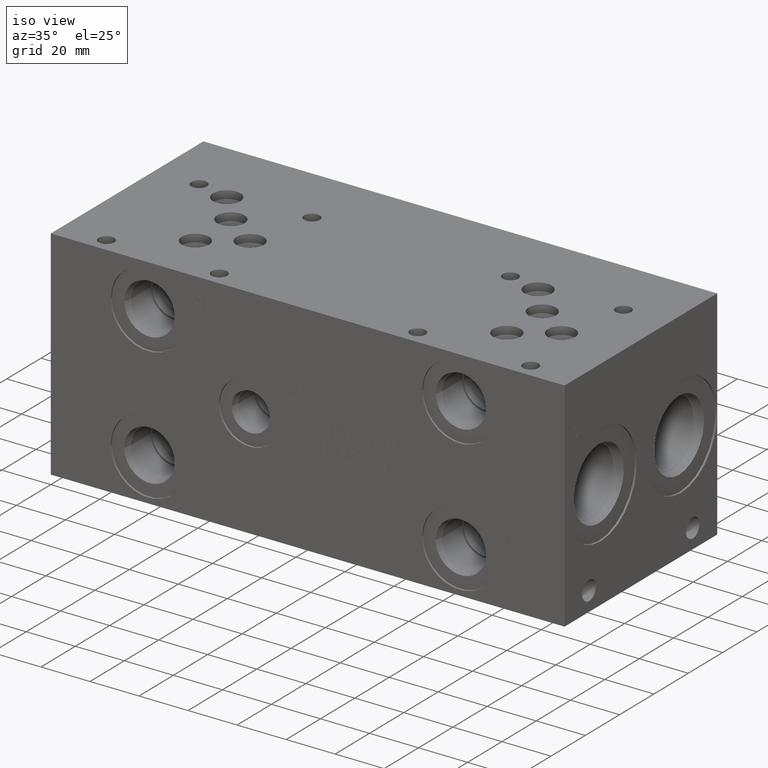
[diagram: clean part render]
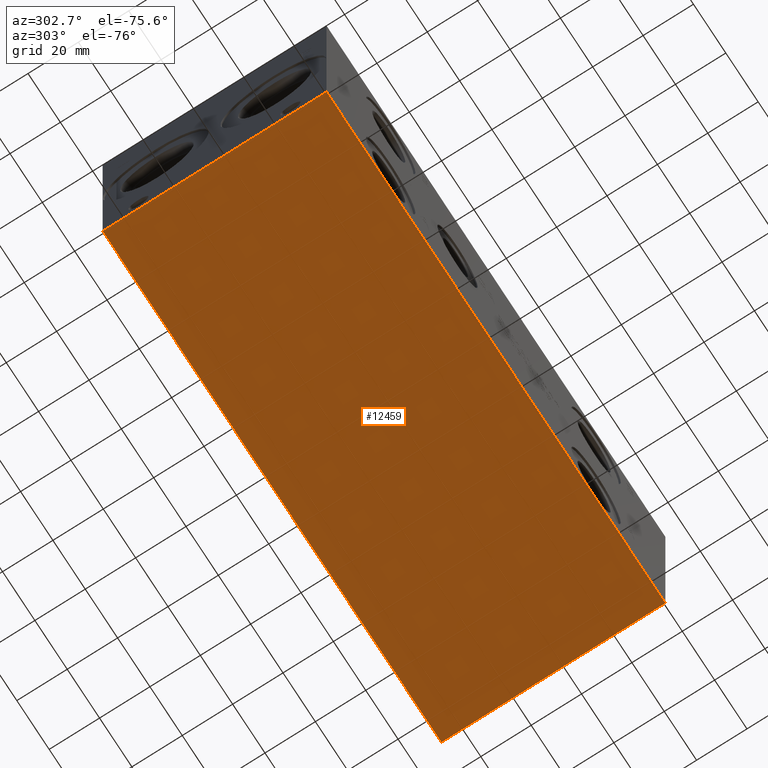
[diagram: tour spotlight — one face highlighted and labeled with its STEP entity id]
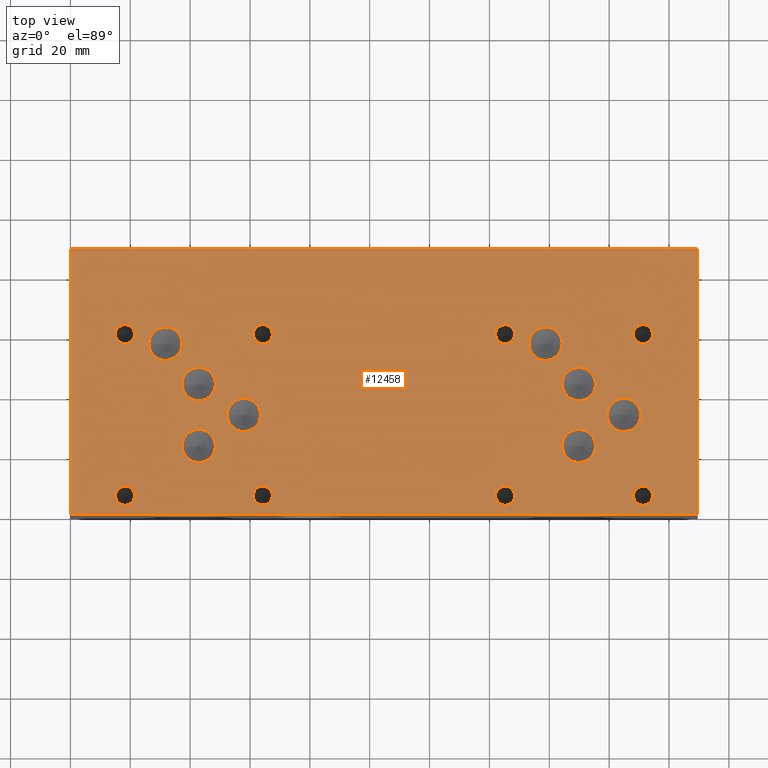
[diagram: tour spotlight — one face highlighted and labeled with its STEP entity id]
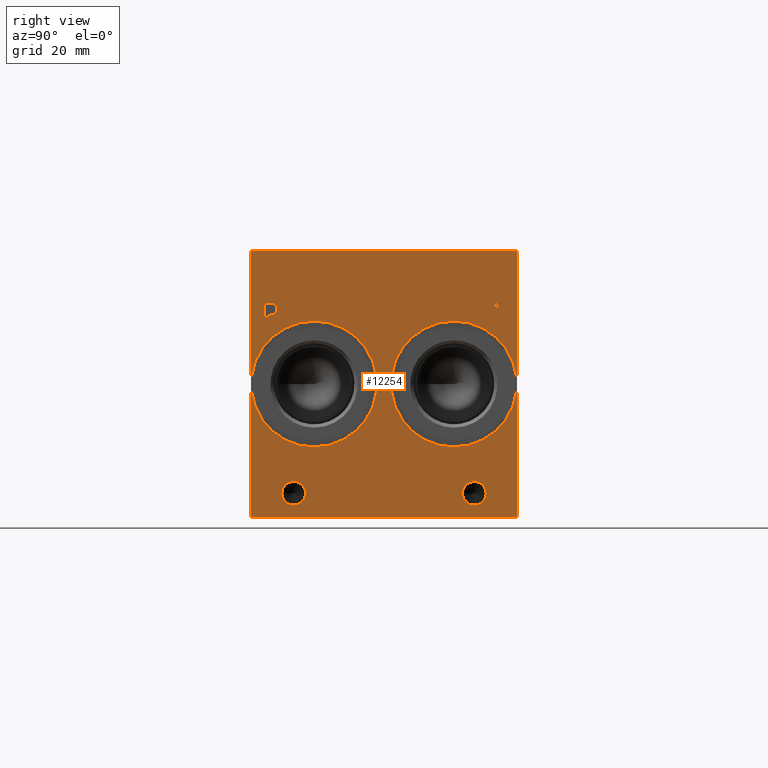
[diagram: tour spotlight — one face highlighted and labeled with its STEP entity id]
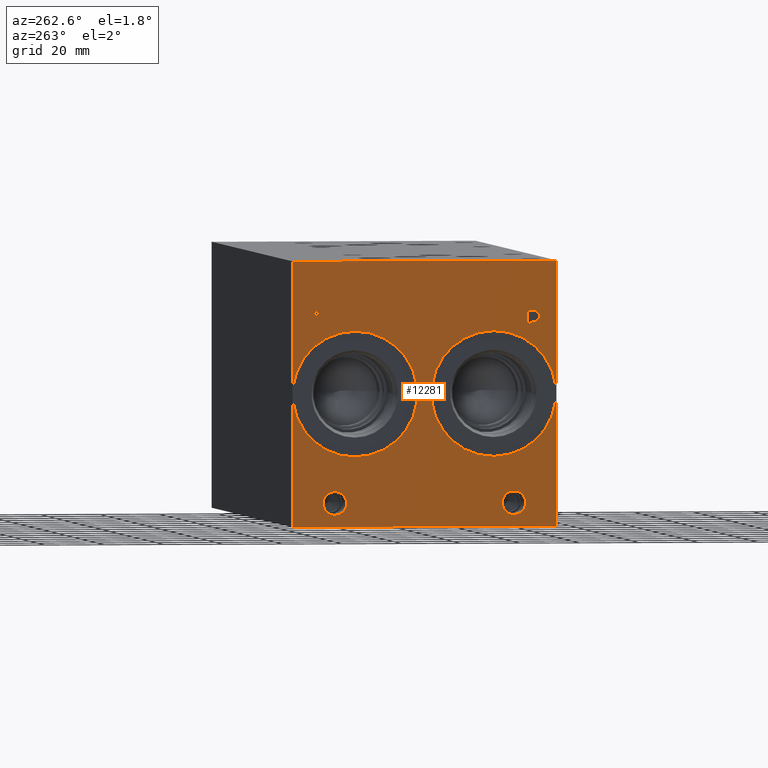
[diagram: tour spotlight — one face highlighted and labeled with its STEP entity id]
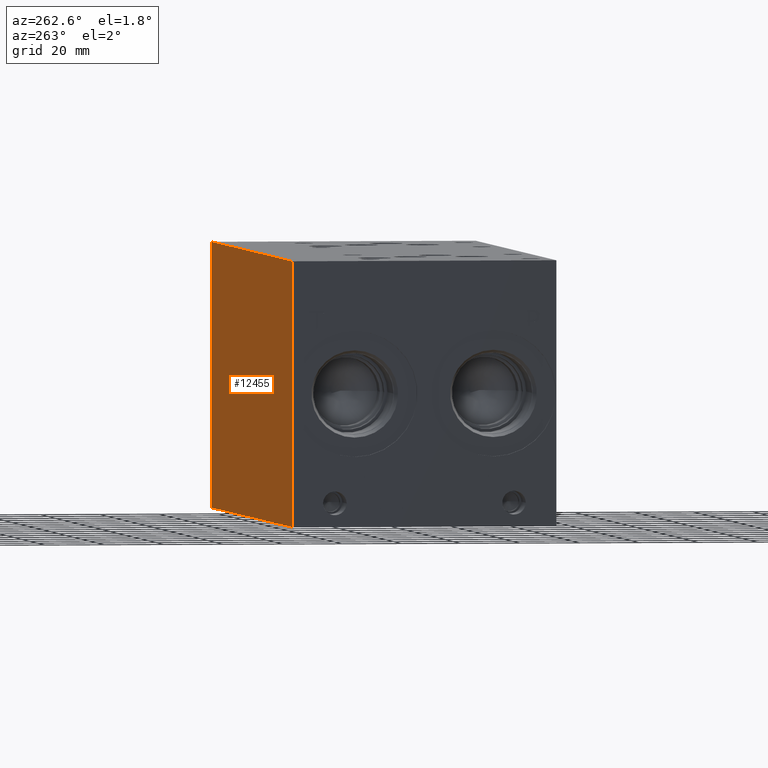
[diagram: tour spotlight — one face highlighted and labeled with its STEP entity id]
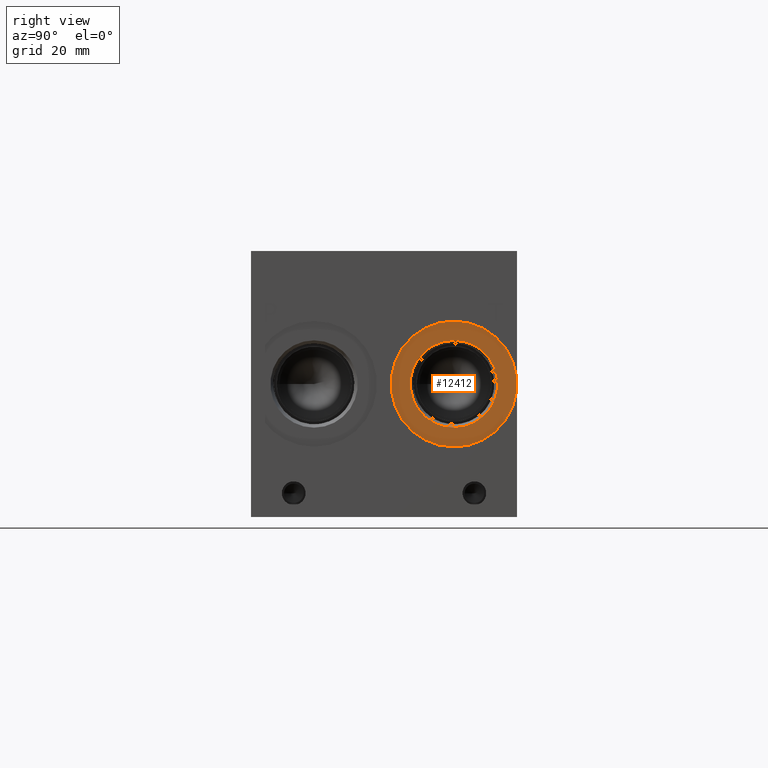
[diagram: tour spotlight — one face highlighted and labeled with its STEP entity id]
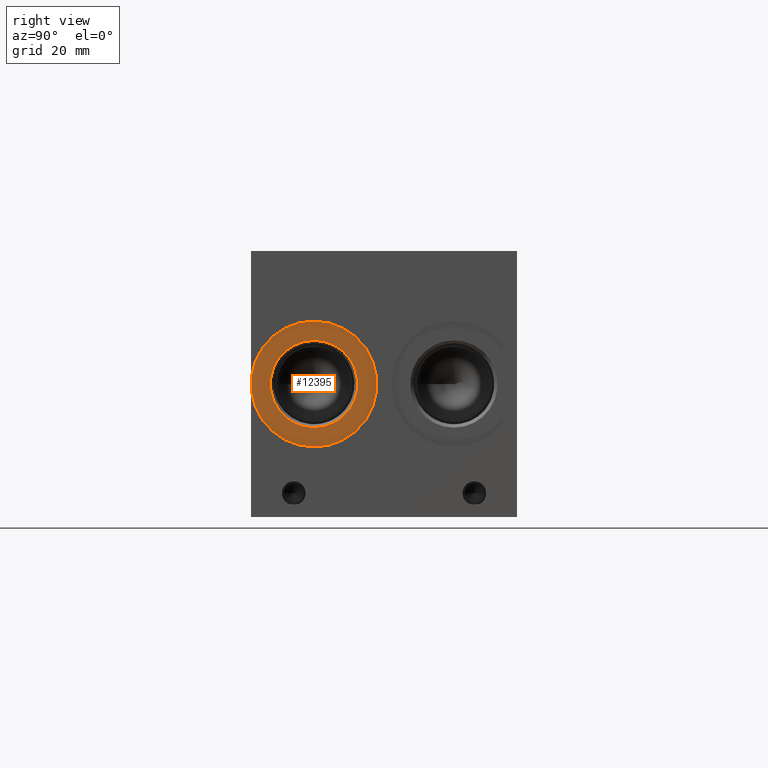
[diagram: tour spotlight — one face highlighted and labeled with its STEP entity id]
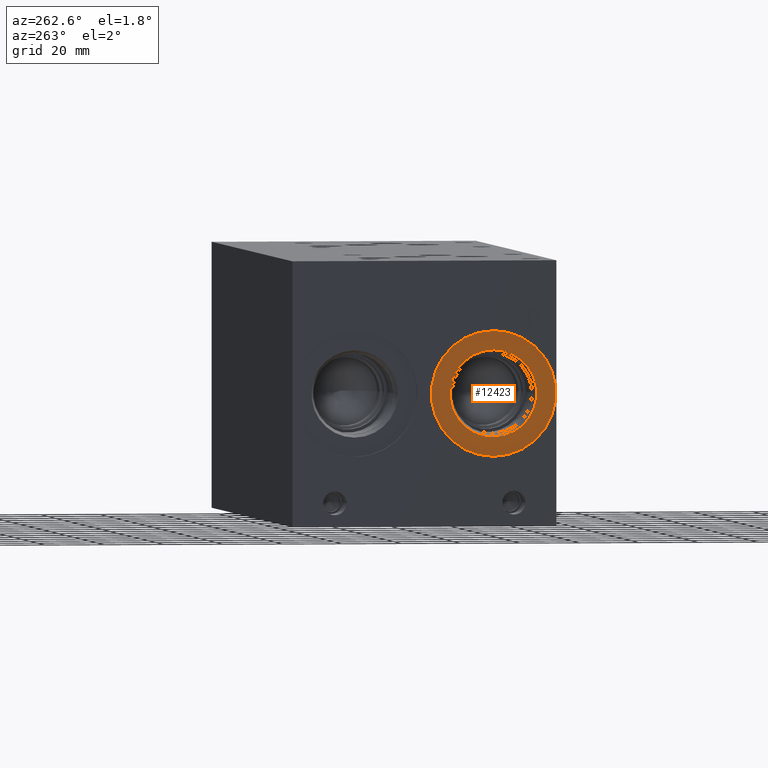
[diagram: tour spotlight — one face highlighted and labeled with its STEP entity id]
A machine part: a face-by-face anatomy tour. The part has 643 B-rep faces; the first image is the clean iso view, then the 8 largest visible faces are spotlighted one at a time (largest first), each with its STEP entity span.

Face 1 — auxiliary view, entity #12459. In plain terms, the highlighted planar face has unit normal (0, 0, 1).
Definition (entity closure, byte-faithful):
#891=PLANE('',#13248);
#1534=FACE_OUTER_BOUND('',#2280,.T.);
#2280=EDGE_LOOP('',(#11195,#11196,#11197,#11198));
#2542=LINE('',#18034,#3659);
#3177=LINE('',#20339,#4294);
#3236=LINE('',#20611,#4353);
#3396=LINE('',#21537,#4513);
#3659=VECTOR('',#13644,10.);
#4294=VECTOR('',#14741,10.);
#4353=VECTOR('',#14854,10.);
#4513=VECTOR('',#15908,10.);
#5131=VERTEX_POINT('',#18032);
#5132=VERTEX_POINT('',#18033);
#5643=VERTEX_POINT('',#20338);
#5701=VERTEX_POINT('',#20610);
#6468=EDGE_CURVE('',#5131,#5132,#2542,.T.);
#7229=EDGE_CURVE('',#5132,#5643,#3177,.T.);
#7312=EDGE_CURVE('',#5701,#5131,#3236,.T.);
#7745=EDGE_CURVE('',#5643,#5701,#3396,.T.);
#11195=ORIENTED_EDGE('',*,*,#6468,.F.);
#11196=ORIENTED_EDGE('',*,*,#7312,.F.);
#11197=ORIENTED_EDGE('',*,*,#7745,.F.);
#11198=ORIENTED_EDGE('',*,*,#7229,.F.);
#12459=ADVANCED_FACE('',(#1534),#891,.F.);
#13248=AXIS2_PLACEMENT_3D('',#21542,#15916,#15917);
#13644=DIRECTION('',(1.,0.,0.));
#14741=DIRECTION('',(0.,1.,0.));
#14854=DIRECTION('',(0.,-1.,0.));
#15908=DIRECTION('',(-1.,0.,0.));
#15916=DIRECTION('center_axis',(0.,0.,1.));
#15917=DIRECTION('ref_axis',(1.,0.,0.));
#18032=CARTESIAN_POINT('',(0.,0.,0.));
#18033=CARTESIAN_POINT('',(209.55,0.,0.));
#18034=CARTESIAN_POINT('',(0.,0.,0.));
#20338=CARTESIAN_POINT('',(209.55,88.9,0.));
#20339=CARTESIAN_POINT('',(209.55,0.,0.));
#20610=CARTESIAN_POINT('',(0.,88.9,0.));
#20611=CARTESIAN_POINT('',(0.,88.9,0.));
#21537=CARTESIAN_POINT('',(209.55,88.9,0.));
#21542=CARTESIAN_POINT('Origin',(104.775,44.45,0.));

Face 2 — top view, entity #12458. In plain terms, the highlighted planar face has unit normal (0, 0, 1).
Definition (entity closure, byte-faithful):
#175=CIRCLE('',#12819,5.5626);
#176=CIRCLE('',#12820,5.5626);
#179=CIRCLE('',#12825,5.5626);
#180=CIRCLE('',#12826,5.5626);
#183=CIRCLE('',#12831,5.5626);
#184=CIRCLE('',#12832,5.5626);
#187=CIRCLE('',#12837,5.5626);
#188=CIRCLE('',#12838,5.5626);
#191=CIRCLE('',#12843,5.5626);
#192=CIRCLE('',#12844,5.5626);
#195=CIRCLE('',#12849,5.5626);
#196=CIRCLE('',#12850,5.5626);
#199=CIRCLE('',#12855,5.5626);
#200=CIRCLE('',#12856,5.5626);
#203=CIRCLE('',#12861,5.5626);
#204=CIRCLE('',#12862,5.5626);
#210=CIRCLE('',#12871,3.175);
#211=CIRCLE('',#12872,3.175);
#217=CIRCLE('',#12882,3.175);
#218=CIRCLE('',#12883,3.175);
#224=CIRCLE('',#12893,3.175);
#225=CIRCLE('',#12894,3.175);
#231=CIRCLE('',#12904,3.175);
#232=CIRCLE('',#12905,3.175);
#238=CIRCLE('',#12915,3.175);
#239=CIRCLE('',#12916,3.175);
#245=CIRCLE('',#12926,3.175);
#246=CIRCLE('',#12927,3.175);
#252=CIRCLE('',#12937,3.175);
#253=CIRCLE('',#12938,3.175);
#259=CIRCLE('',#12948,3.175);
#260=CIRCLE('',#12949,3.175);
#525=FACE_BOUND('',#2264,.T.);
#526=FACE_BOUND('',#2265,.T.);
#527=FACE_BOUND('',#2266,.T.);
#528=FACE_BOUND('',#2267,.T.);
#529=FACE_BOUND('',#2268,.T.);
#530=FACE_BOUND('',#2269,.T.);
#531=FACE_BOUND('',#2270,.T.);
#532=FACE_BOUND('',#2271,.T.);
#533=FACE_BOUND('',#2272,.T.);
#534=FACE_BOUND('',#2273,.T.);
#535=FACE_BOUND('',#2274,.T.);
#536=FACE_BOUND('',#2275,.T.);
#537=FACE_BOUND('',#2276,.T.);
#538=FACE_BOUND('',#2277,.T.);
#539=FACE_BOUND('',#2278,.T.);
#540=FACE_BOUND('',#2279,.T.);
#890=PLANE('',#13247);
#1533=FACE_OUTER_BOUND('',#2263,.T.);
#2263=EDGE_LOOP('',(#11159,#11160,#11161,#11162));
#2264=EDGE_LOOP('',(#11163,#11164));
#2265=EDGE_LOOP('',(#11165,#11166));
#2266=EDGE_LOOP('',(#11167,#11168));
#2267=EDGE_LOOP('',(#11169,#11170));
#2268=EDGE_LOOP('',(#11171,#11172));
#2269=EDGE_LOOP('',(#11173,#11174));
#2270=EDGE_LOOP('',(#11175,#11176));
#2271=EDGE_LOOP('',(#11177,#11178));
#2272=EDGE_LOOP('',(#11179,#11180));
#2273=EDGE_LOOP('',(#11181,#11182));
#2274=EDGE_LOOP('',(#11183,#11184));
#2275=EDGE_LOOP('',(#11185,#11186));
#2276=EDGE_LOOP('',(#11187,#11188));
#2277=EDGE_LOOP('',(#11189,#11190));
#2278=EDGE_LOOP('',(#11191,#11192));
#2279=EDGE_LOOP('',(#11193,#11194));
#2544=LINE('',#18038,#3661);
#3179=LINE('',#20342,#4296);
#3237=LINE('',#20613,#4354);
#3397=LINE('',#21538,#4514);
#3661=VECTOR('',#13646,10.);
#4296=VECTOR('',#14743,10.);
#4354=VECTOR('',#14855,10.);
#4514=VECTOR('',#15909,10.);
#5133=VERTEX_POINT('',#18035);
#5134=VERTEX_POINT('',#18037);
#5644=VERTEX_POINT('',#20340);
#5702=VERTEX_POINT('',#20612);
#5730=VERTEX_POINT('',#20688);
#5731=VERTEX_POINT('',#20689);
#5735=VERTEX_POINT('',#20701);
#5736=VERTEX_POINT('',#20702);
#5740=VERTEX_POINT('',#20714);
#5741=VERTEX_POINT('',#20715);
#5745=VERTEX_POINT('',#20727);
#5746=VERTEX_POINT('',#20728);
#5750=VERTEX_POINT('',#20740);
#5751=VERTEX_POINT('',#20741);
#5755=VERTEX_POINT('',#20753);
#5756=VERTEX_POINT('',#20754);
#5760=VERTEX_POINT('',#20766);
#5761=VERTEX_POINT('',#20767);
#5765=VERTEX_POINT('',#20779);
#5766=VERTEX_POINT('',#20780);
#5773=VERTEX_POINT('',#20799);
#5774=VERTEX_POINT('',#20800);
#5781=VERTEX_POINT('',#20821);
#5782=VERTEX_POINT('',#20822);
#5789=VERTEX_POINT('',#20843);
#5790=VERTEX_POINT('',#20844);
#5797=VERTEX_POINT('',#20865);
#5798=VERTEX_POINT('',#20866);
#5805=VERTEX_POINT('',#20887);
#5806=VERTEX_POINT('',#20888);
#5813=VERTEX_POINT('',#20909);
#5814=VERTEX_POINT('',#20910);
#5821=VERTEX_POINT('',#20931);
#5822=VERTEX_POINT('',#20932);
#5829=VERTEX_POINT('',#20953);
#5830=VERTEX_POINT('',#20954);
#6470=EDGE_CURVE('',#5134,#5133,#2544,.T.);
#7231=EDGE_CURVE('',#5133,#5644,#3179,.T.);
#7313=EDGE_CURVE('',#5702,#5134,#3237,.T.);
#7350=EDGE_CURVE('',#5730,#5731,#175,.T.);
#7351=EDGE_CURVE('',#5731,#5730,#176,.T.);
#7356=EDGE_CURVE('',#5735,#5736,#179,.T.);
#7357=EDGE_CURVE('',#5736,#5735,#180,.T.);
#7362=EDGE_CURVE('',#5740,#5741,#183,.T.);
#7363=EDGE_CURVE('',#5741,#5740,#184,.T.);
#7368=EDGE_CURVE('',#5745,#5746,#187,.T.);
#7369=EDGE_CURVE('',#5746,#5745,#188,.T.);
#7374=EDGE_CURVE('',#5750,#5751,#191,.T.);
#7375=EDGE_CURVE('',#5751,#5750,#192,.T.);
#7380=EDGE_CURVE('',#5755,#5756,#195,.T.);
#7381=EDGE_CURVE('',#5756,#5755,#196,.T.);
#7386=EDGE_CURVE('',#5760,#5761,#199,.T.);
#7387=EDGE_CURVE('',#5761,#5760,#200,.T.);
#7392=EDGE_CURVE('',#5765,#5766,#203,.T.);
#7393=EDGE_CURVE('',#5766,#5765,#204,.T.);
#7401=EDGE_CURVE('',#5773,#5774,#210,.T.);
#7402=EDGE_CURVE('',#5774,#5773,#211,.T.);
#7411=EDGE_CURVE('',#5781,#5782,#217,.T.);
#7412=EDGE_CURVE('',#5782,#5781,#218,.T.);
#7421=EDGE_CURVE('',#5789,#5790,#224,.T.);
#7422=EDGE_CURVE('',#5790,#5789,#225,.T.);
#7431=EDGE_CURVE('',#5797,#5798,#231,.T.);
#7432=EDGE_CURVE('',#5798,#5797,#232,.T.);
#7441=EDGE_CURVE('',#5805,#5806,#238,.T.);
#7442=EDGE_CURVE('',#5806,#5805,#239,.T.);
#7451=EDGE_CURVE('',#5813,#5814,#245,.T.);
#7452=EDGE_CURVE('',#5814,#5813,#246,.T.);
#7461=EDGE_CURVE('',#5821,#5822,#252,.T.);
#7462=EDGE_CURVE('',#5822,#5821,#253,.T.);
#7471=EDGE_CURVE('',#5829,#5830,#259,.T.);
#7472=EDGE_CURVE('',#5830,#5829,#260,.T.);
#7746=EDGE_CURVE('',#5644,#5702,#3397,.T.);
#11159=ORIENTED_EDGE('',*,*,#6470,.T.);
#11160=ORIENTED_EDGE('',*,*,#7231,.T.);
#11161=ORIENTED_EDGE('',*,*,#7746,.T.);
#11162=ORIENTED_EDGE('',*,*,#7313,.T.);
#11163=ORIENTED_EDGE('',*,*,#7350,.T.);
#11164=ORIENTED_EDGE('',*,*,#7351,.T.);
#11165=ORIENTED_EDGE('',*,*,#7356,.T.);
#11166=ORIENTED_EDGE('',*,*,#7357,.T.);
#11167=ORIENTED_EDGE('',*,*,#7362,.T.);
#11168=ORIENTED_EDGE('',*,*,#7363,.T.);
#11169=ORIENTED_EDGE('',*,*,#7368,.T.);
#11170=ORIENTED_EDGE('',*,*,#7369,.T.);
#11171=ORIENTED_EDGE('',*,*,#7374,.T.);
#11172=ORIENTED_EDGE('',*,*,#7375,.T.);
#11173=ORIENTED_EDGE('',*,*,#7380,.T.);
#11174=ORIENTED_EDGE('',*,*,#7381,.T.);
#11175=ORIENTED_EDGE('',*,*,#7386,.T.);
#11176=ORIENTED_EDGE('',*,*,#7387,.T.);
#11177=ORIENTED_EDGE('',*,*,#7392,.T.);
#11178=ORIENTED_EDGE('',*,*,#7393,.T.);
#11179=ORIENTED_EDGE('',*,*,#7401,.T.);
#11180=ORIENTED_EDGE('',*,*,#7402,.T.);
#11181=ORIENTED_EDGE('',*,*,#7411,.T.);
#11182=ORIENTED_EDGE('',*,*,#7412,.T.);
#11183=ORIENTED_EDGE('',*,*,#7421,.T.);
#11184=ORIENTED_EDGE('',*,*,#7422,.T.);
#11185=ORIENTED_EDGE('',*,*,#7431,.T.);
#11186=ORIENTED_EDGE('',*,*,#7432,.T.);
#11187=ORIENTED_EDGE('',*,*,#7441,.T.);
#11188=ORIENTED_EDGE('',*,*,#7442,.T.);
#11189=ORIENTED_EDGE('',*,*,#7451,.T.);
#11190=ORIENTED_EDGE('',*,*,#7452,.T.);
#11191=ORIENTED_EDGE('',*,*,#7461,.T.);
#11192=ORIENTED_EDGE('',*,*,#7462,.T.);
#11193=ORIENTED_EDGE('',*,*,#7471,.T.);
#11194=ORIENTED_EDGE('',*,*,#7472,.T.);
#12458=ADVANCED_FACE('',(#1533,#525,#526,#527,#528,#529,#530,#531,#532,
#533,#534,#535,#536,#537,#538,#539,#540),#890,.T.);
#12819=AXIS2_PLACEMENT_3D('',#20690,#14924,#14925);
#12820=AXIS2_PLACEMENT_3D('',#20691,#14926,#14927);
#12825=AXIS2_PLACEMENT_3D('',#20703,#14938,#14939);
#12826=AXIS2_PLACEMENT_3D('',#20704,#14940,#14941);
#12831=AXIS2_PLACEMENT_3D('',#20716,#14952,#14953);
#12832=AXIS2_PLACEMENT_3D('',#20717,#14954,#14955);
#12837=AXIS2_PLACEMENT_3D('',#20729,#14966,#14967);
#12838=AXIS2_PLACEMENT_3D('',#20730,#14968,#14969);
#12843=AXIS2_PLACEMENT_3D('',#20742,#14980,#14981);
#12844=AXIS2_PLACEMENT_3D('',#20743,#14982,#14983);
#12849=AXIS2_PLACEMENT_3D('',#20755,#14994,#14995);
#12850=AXIS2_PLACEMENT_3D('',#20756,#14996,#14997);
#12855=AXIS2_PLACEMENT_3D('',#20768,#15008,#15009);
#12856=AXIS2_PLACEMENT_3D('',#20769,#15010,#15011);
#12861=AXIS2_PLACEMENT_3D('',#20781,#15022,#15023);
#12862=AXIS2_PLACEMENT_3D('',#20782,#15024,#15025);
#12871=AXIS2_PLACEMENT_3D('',#20801,#15044,#15045);
#12872=AXIS2_PLACEMENT_3D('',#20802,#15046,#15047);
#12882=AXIS2_PLACEMENT_3D('',#20823,#15069,#15070);
#12883=AXIS2_PLACEMENT_3D('',#20824,#15071,#15072);
#12893=AXIS2_PLACEMENT_3D('',#20845,#15094,#15095);
#12894=AXIS2_PLACEMENT_3D('',#20846,#15096,#15097);
#12904=AXIS2_PLACEMENT_3D('',#20867,#15119,#15120);
#12905=AXIS2_PLACEMENT_3D('',#20868,#15121,#15122);
#12915=AXIS2_PLACEMENT_3D('',#20889,#15144,#15145);
#12916=AXIS2_PLACEMENT_3D('',#20890,#15146,#15147);
#12926=AXIS2_PLACEMENT_3D('',#20911,#15169,#15170);
#12927=AXIS2_PLACEMENT_3D('',#20912,#15171,#15172);
#12937=AXIS2_PLACEMENT_3D('',#20933,#15194,#15195);
#12938=AXIS2_PLACEMENT_3D('',#20934,#15196,#15197);
#12948=AXIS2_PLACEMENT_3D('',#20955,#15219,#15220);
#12949=AXIS2_PLACEMENT_3D('',#20956,#15221,#15222);
#13247=AXIS2_PLACEMENT_3D('',#21541,#15914,#15915);
#13646=DIRECTION('',(1.,0.,0.));
#14743=DIRECTION('',(0.,1.,0.));
#14855=DIRECTION('',(0.,-1.,0.));
#14924=DIRECTION('center_axis',(0.,0.,-1.));
#14925=DIRECTION('ref_axis',(1.,0.,0.));
#14926=DIRECTION('center_axis',(0.,0.,-1.));
#14927=DIRECTION('ref_axis',(1.,0.,0.));
#14938=DIRECTION('center_axis',(0.,0.,-1.));
#14939=DIRECTION('ref_axis',(1.,0.,0.));
#14940=DIRECTION('center_axis',(0.,0.,-1.));
#14941=DIRECTION('ref_axis',(1.,0.,0.));
#14952=DIRECTION('center_axis',(0.,0.,-1.));
#14953=DIRECTION('ref_axis',(1.,0.,0.));
#14954=DIRECTION('center_axis',(0.,0.,-1.));
#14955=DIRECTION('ref_axis',(1.,0.,0.));
#14966=DIRECTION('center_axis',(0.,0.,-1.));
#14967=DIRECTION('ref_axis',(1.,0.,0.));
#14968=DIRECTION('center_axis',(0.,0.,-1.));
#14969=DIRECTION('ref_axis',(1.,0.,0.));
#14980=DIRECTION('center_axis',(0.,0.,-1.));
#14981=DIRECTION('ref_axis',(1.,0.,0.));
#14982=DIRECTION('center_axis',(0.,0.,-1.));
#14983=DIRECTION('ref_axis',(1.,0.,0.));
#14994=DIRECTION('center_axis',(0.,0.,-1.));
#14995=DIRECTION('ref_axis',(1.,0.,0.));
#14996=DIRECTION('center_axis',(0.,0.,-1.));
#14997=DIRECTION('ref_axis',(1.,0.,0.));
#15008=DIRECTION('center_axis',(0.,0.,-1.));
#15009=DIRECTION('ref_axis',(1.,0.,0.));
#15010=DIRECTION('center_axis',(0.,0.,-1.));
#15011=DIRECTION('ref_axis',(1.,0.,0.));
#15022=DIRECTION('center_axis',(0.,0.,-1.));
#15023=DIRECTION('ref_axis',(1.,0.,0.));
#15024=DIRECTION('center_axis',(0.,0.,-1.));
#15025=DIRECTION('ref_axis',(1.,0.,0.));
#15044=DIRECTION('center_axis',(0.,0.,-1.));
#15045=DIRECTION('ref_axis',(1.,0.,0.));
#15046=DIRECTION('center_axis',(0.,0.,-1.));
#15047=DIRECTION('ref_axis',(1.,0.,0.));
#15069=DIRECTION('center_axis',(0.,0.,-1.));
#15070=DIRECTION('ref_axis',(1.,0.,0.));
#15071=DIRECTION('center_axis',(0.,0.,-1.));
#15072=DIRECTION('ref_axis',(1.,0.,0.));
#15094=DIRECTION('center_axis',(0.,0.,-1.));
#15095=DIRECTION('ref_axis',(1.,0.,0.));
#15096=DIRECTION('center_axis',(0.,0.,-1.));
#15097=DIRECTION('ref_axis',(1.,0.,0.));
#15119=DIRECTION('center_axis',(0.,0.,-1.));
#15120=DIRECTION('ref_axis',(1.,0.,0.));
#15121=DIRECTION('center_axis',(0.,0.,-1.));
#15122=DIRECTION('ref_axis',(1.,0.,0.));
#15144=DIRECTION('center_axis',(0.,0.,-1.));
#15145=DIRECTION('ref_axis',(1.,0.,0.));
#15146=DIRECTION('center_axis',(0.,0.,-1.));
#15147=DIRECTION('ref_axis',(1.,0.,0.));
#15169=DIRECTION('center_axis',(0.,0.,-1.));
#15170=DIRECTION('ref_axis',(1.,0.,0.));
#15171=DIRECTION('center_axis',(0.,0.,-1.));
#15172=DIRECTION('ref_axis',(1.,0.,0.));
#15194=DIRECTION('center_axis',(0.,0.,-1.));
#15195=DIRECTION('ref_axis',(1.,0.,0.));
#15196=DIRECTION('center_axis',(0.,0.,-1.));
#15197=DIRECTION('ref_axis',(1.,0.,0.));
#15219=DIRECTION('center_axis',(0.,0.,-1.));
#15220=DIRECTION('ref_axis',(1.,0.,0.));
#15221=DIRECTION('center_axis',(0.,0.,-1.));
#15222=DIRECTION('ref_axis',(1.,0.,0.));
#15909=DIRECTION('',(-1.,0.,0.));
#15914=DIRECTION('center_axis',(0.,0.,1.));
#15915=DIRECTION('ref_axis',(1.,0.,0.));
#18035=CARTESIAN_POINT('',(209.55,0.,88.9));
#18037=CARTESIAN_POINT('',(0.,0.,88.9));
#18038=CARTESIAN_POINT('',(0.,0.,88.9));
#20340=CARTESIAN_POINT('',(209.55,88.9,88.9));
#20342=CARTESIAN_POINT('',(209.55,0.,88.9));
#20612=CARTESIAN_POINT('',(0.,88.9,88.9));
#20613=CARTESIAN_POINT('',(0.,88.9,88.9));
#20688=CARTESIAN_POINT('',(175.4378,43.6372,88.9));
#20689=CARTESIAN_POINT('',(164.3126,43.6372,88.9));
#20690=CARTESIAN_POINT('Origin',(169.8752,43.6372,88.9));
#20691=CARTESIAN_POINT('Origin',(169.8752,43.6372,88.9));
#20701=CARTESIAN_POINT('',(190.5254,33.3248,88.9));
#20702=CARTESIAN_POINT('',(179.4002,33.3248,88.9));
#20703=CARTESIAN_POINT('Origin',(184.9628,33.3248,88.9));
#20704=CARTESIAN_POINT('Origin',(184.9628,33.3248,88.9));
#20714=CARTESIAN_POINT('',(48.4251,43.64228,88.9));
#20715=CARTESIAN_POINT('',(37.2999,43.64228,88.9));
#20716=CARTESIAN_POINT('Origin',(42.8625,43.64228,88.9));
#20717=CARTESIAN_POINT('Origin',(42.8625,43.64228,88.9));
#20727=CARTESIAN_POINT('',(63.5254,33.3248,88.9));
#20728=CARTESIAN_POINT('',(52.4002,33.3248,88.9));
#20729=CARTESIAN_POINT('Origin',(57.9628,33.3248,88.9));
#20730=CARTESIAN_POINT('Origin',(57.9628,33.3248,88.9));
#20740=CARTESIAN_POINT('',(37.3126,57.15,88.9));
#20741=CARTESIAN_POINT('',(26.1874,57.15,88.9));
#20742=CARTESIAN_POINT('Origin',(31.75,57.15,88.9));
#20743=CARTESIAN_POINT('Origin',(31.75,57.15,88.9));
#20753=CARTESIAN_POINT('',(48.43018,23.00732,88.9));
#20754=CARTESIAN_POINT('',(37.30498,23.00732,88.9));
#20755=CARTESIAN_POINT('Origin',(42.86758,23.00732,88.9));
#20756=CARTESIAN_POINT('Origin',(42.86758,23.00732,88.9));
#20766=CARTESIAN_POINT('',(164.3126,57.15,88.9));
#20767=CARTESIAN_POINT('',(153.1874,57.15,88.9));
#20768=CARTESIAN_POINT('Origin',(158.75,57.15,88.9));
#20769=CARTESIAN_POINT('Origin',(158.75,57.15,88.9));
#20779=CARTESIAN_POINT('',(175.4378,23.0124,88.9));
#20780=CARTESIAN_POINT('',(164.3126,23.0124,88.9));
#20781=CARTESIAN_POINT('Origin',(169.8752,23.0124,88.9));
#20782=CARTESIAN_POINT('Origin',(169.8752,23.0124,88.9));
#20799=CARTESIAN_POINT('',(194.4624,6.35,88.9));
#20800=CARTESIAN_POINT('',(188.1124,6.35,88.9));
#20801=CARTESIAN_POINT('Origin',(191.2874,6.35,88.9));
#20802=CARTESIAN_POINT('Origin',(191.2874,6.35,88.9));
#20821=CARTESIAN_POINT('',(148.4122,60.325,88.9));
#20822=CARTESIAN_POINT('',(142.0622,60.325,88.9));
#20823=CARTESIAN_POINT('Origin',(145.2372,60.325,88.9));
#20824=CARTESIAN_POINT('Origin',(145.2372,60.325,88.9));
#20843=CARTESIAN_POINT('',(67.4624,6.3627,88.9));
#20844=CARTESIAN_POINT('',(61.1124,6.3627,88.9));
#20845=CARTESIAN_POINT('Origin',(64.2874,6.3627,88.9));
#20846=CARTESIAN_POINT('Origin',(64.2874,6.3627,88.9));
#20865=CARTESIAN_POINT('',(21.4122,60.325,88.9));
#20866=CARTESIAN_POINT('',(15.0622,60.325,88.9));
#20867=CARTESIAN_POINT('Origin',(18.2372,60.325,88.9));
#20868=CARTESIAN_POINT('Origin',(18.2372,60.325,88.9));
#20887=CARTESIAN_POINT('',(67.4624,60.325,88.9));
#20888=CARTESIAN_POINT('',(61.1124,60.325,88.9));
#20889=CARTESIAN_POINT('Origin',(64.2874,60.325,88.9));
#20890=CARTESIAN_POINT('Origin',(64.2874,60.325,88.9));
#20909=CARTESIAN_POINT('',(21.4122,6.35,88.9));
#20910=CARTESIAN_POINT('',(15.0622,6.35,88.9));
#20911=CARTESIAN_POINT('Origin',(18.2372,6.35,88.9));
#20912=CARTESIAN_POINT('Origin',(18.2372,6.35,88.9));
#20931=CARTESIAN_POINT('',(194.4624,60.325,88.9));
#20932=CARTESIAN_POINT('',(188.1124,60.325,88.9));
#20933=CARTESIAN_POINT('Origin',(191.2874,60.325,88.9));
#20934=CARTESIAN_POINT('Origin',(191.2874,60.325,88.9));
#20953=CARTESIAN_POINT('',(148.4122,6.35,88.9));
#20954=CARTESIAN_POINT('',(142.0622,6.35,88.9));
#20955=CARTESIAN_POINT('Origin',(145.2372,6.35,88.9));
#20956=CARTESIAN_POINT('Origin',(145.2372,6.35,88.9));
#21538=CARTESIAN_POINT('',(209.55,88.9,88.9));
#21541=CARTESIAN_POINT('Origin',(104.775,44.45,88.9));

Face 3 — right view, entity #12254. In plain terms, the highlighted planar face has unit normal (1, 0, 0).
Definition (entity closure, byte-faithful):
#157=CIRCLE('',#12771,3.9624);
#158=CIRCLE('',#12772,3.9624);
#159=CIRCLE('',#12773,3.9624);
#160=CIRCLE('',#12774,3.9624);
#161=CIRCLE('',#12775,21.0185);
#162=CIRCLE('',#12776,21.0185);
#163=CIRCLE('',#12777,21.0185);
#164=CIRCLE('',#12778,21.0185);
#482=FACE_BOUND('',#2017,.T.);
#483=FACE_BOUND('',#2018,.T.);
#484=FACE_BOUND('',#2019,.T.);
#485=FACE_BOUND('',#2020,.T.);
#486=FACE_BOUND('',#2021,.T.);
#487=FACE_BOUND('',#2022,.T.);
#827=PLANE('',#12770);
#1329=FACE_OUTER_BOUND('',#2016,.T.);
#2016=EDGE_LOOP('',(#10126,#10127,#10128,#10129));
#2017=EDGE_LOOP('',(#10130,#10131));
#2018=EDGE_LOOP('',(#10132,#10133));
#2019=EDGE_LOOP('',(#10134,#10135));
#2020=EDGE_LOOP('',(#10136,#10137));
#2021=EDGE_LOOP('',(#10138,#10139,#10140,#10141,#10142,#10143,#10144,#10145));
#2022=EDGE_LOOP('',(#10146,#10147,#10148,#10149,#10150,#10151,#10152,#10153,
#10154));
#2543=LINE('',#18036,#3660);
#3161=LINE('',#20273,#4278);
#3164=LINE('',#20279,#4281);
#3167=LINE('',#20285,#4284);
#3170=LINE('',#20291,#4287);
#3173=LINE('',#20297,#4290);
#3177=LINE('',#20339,#4294);
#3178=LINE('',#20341,#4295);
#3179=LINE('',#20342,#4296);
#3180=LINE('',#20361,#4297);
#3181=LINE('',#20363,#4298);
#3182=LINE('',#20365,#4299);
#3183=LINE('',#20367,#4300);
#3184=LINE('',#20369,#4301);
#3185=LINE('',#20371,#4302);
#3186=LINE('',#20373,#4303);
#3187=LINE('',#20374,#4304);
#3660=VECTOR('',#13645,10.);
#4278=VECTOR('',#14713,10.);
#4281=VECTOR('',#14718,10.);
#4284=VECTOR('',#14723,10.);
#4287=VECTOR('',#14728,10.);
#4290=VECTOR('',#14733,10.);
#4294=VECTOR('',#14741,10.);
#4295=VECTOR('',#14742,10.);
#4296=VECTOR('',#14743,10.);
#4297=VECTOR('',#14760,10.);
#4298=VECTOR('',#14761,10.);
#4299=VECTOR('',#14762,10.);
#4300=VECTOR('',#14763,10.);
#4301=VECTOR('',#14764,10.);
#4302=VECTOR('',#14765,10.);
#4303=VECTOR('',#14766,10.);
#4304=VECTOR('',#14767,10.);
#4809=B_SPLINE_CURVE_WITH_KNOTS('',2,(#20240,#20241,#20242,#20243),
 .UNSPECIFIED.,.F.,.F.,(3,1,3),(0.,1.,2.),.UNSPECIFIED.);
#4811=B_SPLINE_CURVE_WITH_KNOTS('',2,(#20261,#20262,#20263,#20264),
 .UNSPECIFIED.,.F.,.F.,(3,1,3),(0.,1.,2.),.UNSPECIFIED.);
#4813=B_SPLINE_CURVE_WITH_KNOTS('',2,(#20310,#20311,#20312,#20313),
 .UNSPECIFIED.,.F.,.F.,(3,1,3),(0.,1.,2.),.UNSPECIFIED.);
#4815=B_SPLINE_CURVE_WITH_KNOTS('',2,(#20328,#20329,#20330,#20331),
 .UNSPECIFIED.,.F.,.F.,(3,1,3),(0.,1.,2.),.UNSPECIFIED.);
#5132=VERTEX_POINT('',#18033);
#5133=VERTEX_POINT('',#18035);
#5625=VERTEX_POINT('',#20238);
#5626=VERTEX_POINT('',#20239);
#5629=VERTEX_POINT('',#20260);
#5631=VERTEX_POINT('',#20272);
#5633=VERTEX_POINT('',#20278);
#5635=VERTEX_POINT('',#20284);
#5637=VERTEX_POINT('',#20290);
#5639=VERTEX_POINT('',#20296);
#5641=VERTEX_POINT('',#20309);
#5643=VERTEX_POINT('',#20338);
#5644=VERTEX_POINT('',#20340);
#5645=VERTEX_POINT('',#20343);
#5646=VERTEX_POINT('',#20344);
#5647=VERTEX_POINT('',#20347);
#5648=VERTEX_POINT('',#20348);
#5649=VERTEX_POINT('',#20351);
#5650=VERTEX_POINT('',#20352);
#5651=VERTEX_POINT('',#20355);
#5652=VERTEX_POINT('',#20356);
#5653=VERTEX_POINT('',#20359);
#5654=VERTEX_POINT('',#20360);
#5655=VERTEX_POINT('',#20362);
#5656=VERTEX_POINT('',#20364);
#5657=VERTEX_POINT('',#20366);
#5658=VERTEX_POINT('',#20368);
#5659=VERTEX_POINT('',#20370);
#5660=VERTEX_POINT('',#20372);
#6469=EDGE_CURVE('',#5132,#5133,#2543,.T.);
#7202=EDGE_CURVE('',#5625,#5626,#4809,.T.);
#7206=EDGE_CURVE('',#5629,#5625,#4811,.T.);
#7209=EDGE_CURVE('',#5631,#5629,#3161,.T.);
#7212=EDGE_CURVE('',#5633,#5631,#3164,.T.);
#7215=EDGE_CURVE('',#5635,#5633,#3167,.T.);
#7218=EDGE_CURVE('',#5637,#5635,#3170,.T.);
#7221=EDGE_CURVE('',#5639,#5637,#3173,.T.);
#7224=EDGE_CURVE('',#5641,#5639,#4813,.T.);
#7227=EDGE_CURVE('',#5626,#5641,#4815,.T.);
#7229=EDGE_CURVE('',#5132,#5643,#3177,.T.);
#7230=EDGE_CURVE('',#5643,#5644,#3178,.T.);
#7231=EDGE_CURVE('',#5133,#5644,#3179,.T.);
#7232=EDGE_CURVE('',#5645,#5646,#157,.T.);
#7233=EDGE_CURVE('',#5646,#5645,#158,.T.);
#7234=EDGE_CURVE('',#5647,#5648,#159,.T.);
#7235=EDGE_CURVE('',#5648,#5647,#160,.T.);
#7236=EDGE_CURVE('',#5649,#5650,#161,.T.);
#7237=EDGE_CURVE('',#5650,#5649,#162,.T.);
#7238=EDGE_CURVE('',#5651,#5652,#163,.T.);
#7239=EDGE_CURVE('',#5652,#5651,#164,.T.);
#7240=EDGE_CURVE('',#5653,#5654,#3180,.T.);
#7241=EDGE_CURVE('',#5654,#5655,#3181,.T.);
#7242=EDGE_CURVE('',#5655,#5656,#3182,.T.);
#7243=EDGE_CURVE('',#5656,#5657,#3183,.T.);
#7244=EDGE_CURVE('',#5657,#5658,#3184,.T.);
#7245=EDGE_CURVE('',#5658,#5659,#3185,.T.);
#7246=EDGE_CURVE('',#5659,#5660,#3186,.T.);
#7247=EDGE_CURVE('',#5660,#5653,#3187,.T.);
#10126=ORIENTED_EDGE('',*,*,#7229,.T.);
#10127=ORIENTED_EDGE('',*,*,#7230,.T.);
#10128=ORIENTED_EDGE('',*,*,#7231,.F.);
#10129=ORIENTED_EDGE('',*,*,#6469,.F.);
#10130=ORIENTED_EDGE('',*,*,#7232,.T.);
#10131=ORIENTED_EDGE('',*,*,#7233,.T.);
#10132=ORIENTED_EDGE('',*,*,#7234,.T.);
#10133=ORIENTED_EDGE('',*,*,#7235,.T.);
#10134=ORIENTED_EDGE('',*,*,#7236,.T.);
#10135=ORIENTED_EDGE('',*,*,#7237,.T.);
#10136=ORIENTED_EDGE('',*,*,#7238,.T.);
#10137=ORIENTED_EDGE('',*,*,#7239,.T.);
#10138=ORIENTED_EDGE('',*,*,#7240,.T.);
#10139=ORIENTED_EDGE('',*,*,#7241,.T.);
#10140=ORIENTED_EDGE('',*,*,#7242,.T.);
#10141=ORIENTED_EDGE('',*,*,#7243,.T.);
#10142=ORIENTED_EDGE('',*,*,#7244,.T.);
#10143=ORIENTED_EDGE('',*,*,#7245,.T.);
#10144=ORIENTED_EDGE('',*,*,#7246,.T.);
#10145=ORIENTED_EDGE('',*,*,#7247,.T.);
#10146=ORIENTED_EDGE('',*,*,#7202,.T.);
#10147=ORIENTED_EDGE('',*,*,#7227,.T.);
#10148=ORIENTED_EDGE('',*,*,#7224,.T.);
#10149=ORIENTED_EDGE('',*,*,#7221,.T.);
#10150=ORIENTED_EDGE('',*,*,#7218,.T.);
#10151=ORIENTED_EDGE('',*,*,#7215,.T.);
#10152=ORIENTED_EDGE('',*,*,#7212,.T.);
#10153=ORIENTED_EDGE('',*,*,#7209,.T.);
#10154=ORIENTED_EDGE('',*,*,#7206,.T.);
#12254=ADVANCED_FACE('',(#1329,#482,#483,#484,#485,#486,#487),#827,.T.);
#12770=AXIS2_PLACEMENT_3D('',#20337,#14739,#14740);
#12771=AXIS2_PLACEMENT_3D('',#20345,#14744,#14745);
#12772=AXIS2_PLACEMENT_3D('',#20346,#14746,#14747);
#12773=AXIS2_PLACEMENT_3D('',#20349,#14748,#14749);
#12774=AXIS2_PLACEMENT_3D('',#20350,#14750,#14751);
#12775=AXIS2_PLACEMENT_3D('',#20353,#14752,#14753);
#12776=AXIS2_PLACEMENT_3D('',#20354,#14754,#14755);
#12777=AXIS2_PLACEMENT_3D('',#20357,#14756,#14757);
#12778=AXIS2_PLACEMENT_3D('',#20358,#14758,#14759);
#13645=DIRECTION('',(0.,0.,1.));
#14713=DIRECTION('',(0.,1.,0.));
#14718=DIRECTION('',(0.,0.,1.));
#14723=DIRECTION('',(0.,-1.,0.));
#14728=DIRECTION('',(0.,0.,-1.));
#14733=DIRECTION('',(0.,-1.,0.));
#14739=DIRECTION('center_axis',(1.,0.,0.));
#14740=DIRECTION('ref_axis',(0.,1.,0.));
#14741=DIRECTION('',(0.,1.,0.));
#14742=DIRECTION('',(0.,0.,1.));
#14743=DIRECTION('',(0.,1.,0.));
#14744=DIRECTION('center_axis',(-1.,0.,0.));
#14745=DIRECTION('ref_axis',(0.,1.,0.));
#14746=DIRECTION('center_axis',(-1.,0.,0.));
#14747=DIRECTION('ref_axis',(0.,1.,0.));
#14748=DIRECTION('center_axis',(-1.,0.,0.));
#14749=DIRECTION('ref_axis',(0.,1.,0.));
#14750=DIRECTION('center_axis',(-1.,0.,0.));
#14751=DIRECTION('ref_axis',(0.,1.,0.));
#14752=DIRECTION('center_axis',(-1.,0.,0.));
#14753=DIRECTION('ref_axis',(0.,0.,-1.));
#14754=DIRECTION('center_axis',(-1.,0.,0.));
#14755=DIRECTION('ref_axis',(0.,0.,-1.));
#14756=DIRECTION('center_axis',(-1.,0.,0.));
#14757=DIRECTION('ref_axis',(0.,0.,-1.));
#14758=DIRECTION('center_axis',(-1.,0.,0.));
#14759=DIRECTION('ref_axis',(0.,0.,-1.));
#14760=DIRECTION('',(0.,-1.,0.));
#14761=DIRECTION('',(0.,0.,1.));
#14762=DIRECTION('',(0.,-1.,0.));
#14763=DIRECTION('',(0.,0.,1.));
#14764=DIRECTION('',(0.,1.,0.));
#14765=DIRECTION('',(0.,0.,-1.));
#14766=DIRECTION('',(0.,-1.,0.));
#14767=DIRECTION('',(0.,0.,-1.));
#18033=CARTESIAN_POINT('',(209.55,0.,0.));
#18035=CARTESIAN_POINT('',(209.55,0.,88.9));
#18036=CARTESIAN_POINT('',(209.55,0.,0.));
#20238=CARTESIAN_POINT('',(209.55,7.86931720235939,71.0412681439707));
#20239=CARTESIAN_POINT('',(209.55,8.62575965453199,69.523237372604));
#20240=CARTESIAN_POINT('Ctrl Pts',(209.55,7.86931720235939,71.0412681439707));
#20241=CARTESIAN_POINT('Ctrl Pts',(209.55,8.22438202684857,70.7994123939564));
#20242=CARTESIAN_POINT('Ctrl Pts',(209.55,8.62575965453199,70.0532616758269));
#20243=CARTESIAN_POINT('Ctrl Pts',(209.55,8.62575965453199,69.523237372604));
#20260=CARTESIAN_POINT('',(209.55,6.20720215438831,71.4374999046326));
#20261=CARTESIAN_POINT('Ctrl Pts',(209.55,6.20720215438831,71.4374999046326));
#20262=CARTESIAN_POINT('Ctrl Pts',(209.55,6.77324752676236,71.4374999046326));
#20263=CARTESIAN_POINT('Ctrl Pts',(209.55,7.56571104808603,71.2522486918556));
#20264=CARTESIAN_POINT('Ctrl Pts',(209.55,7.86931720235939,71.0412681439707));
#20272=CARTESIAN_POINT('',(209.55,4.61198337769779,71.4374999046326));
#20273=CARTESIAN_POINT('',(209.55,2.30599168884889,71.4374999046326));
#20278=CARTESIAN_POINT('',(209.55,4.61198337769779,65.0875));
#20279=CARTESIAN_POINT('',(209.55,4.61198337769779,32.54375));
#20284=CARTESIAN_POINT('',(209.55,5.45590556923729,65.0875));
#20285=CARTESIAN_POINT('',(209.55,2.72795278461864,65.0875));
#20290=CARTESIAN_POINT('',(209.55,5.45590556923729,67.4545988299279));
#20291=CARTESIAN_POINT('',(209.55,5.45590556923729,33.7272994149639));
#20296=CARTESIAN_POINT('',(209.55,6.17118108523723,67.4545988299279));
#20297=CARTESIAN_POINT('',(209.55,3.08559054261861,67.4545988299279));
#20309=CARTESIAN_POINT('',(209.55,8.0700060162011,68.1132698086904));
#20310=CARTESIAN_POINT('Ctrl Pts',(209.55,8.0700060162011,68.1132698086904));
#20311=CARTESIAN_POINT('Ctrl Pts',(209.55,7.74067052681983,67.7890801863307));
#20312=CARTESIAN_POINT('Ctrl Pts',(209.55,6.85043553208609,67.4545988299279));
#20313=CARTESIAN_POINT('Ctrl Pts',(209.55,6.17118108523723,67.4545988299279));
#20328=CARTESIAN_POINT('Ctrl Pts',(209.55,8.62575965453199,69.523237372604));
#20329=CARTESIAN_POINT('Ctrl Pts',(209.55,8.62575965453199,69.1115680108774));
#20330=CARTESIAN_POINT('Ctrl Pts',(209.55,8.3324452343018,68.3705631597695));
#20331=CARTESIAN_POINT('Ctrl Pts',(209.55,8.0700060162011,68.1132698086904));
#20337=CARTESIAN_POINT('Origin',(209.55,0.,0.));
#20338=CARTESIAN_POINT('',(209.55,88.9,0.));
#20339=CARTESIAN_POINT('',(209.55,0.,0.));
#20340=CARTESIAN_POINT('',(209.55,88.9,88.9));
#20341=CARTESIAN_POINT('',(209.55,88.9,0.));
#20342=CARTESIAN_POINT('',(209.55,0.,88.9));
#20343=CARTESIAN_POINT('',(209.55,18.2372,7.9248));
#20344=CARTESIAN_POINT('',(209.55,10.3124,7.9248));
#20345=CARTESIAN_POINT('Origin',(209.55,14.2748,7.9248));
#20346=CARTESIAN_POINT('Origin',(209.55,14.2748,7.9248));
#20347=CARTESIAN_POINT('',(209.55,78.5876,7.9248));
#20348=CARTESIAN_POINT('',(209.55,70.6628,7.9248));
#20349=CARTESIAN_POINT('Origin',(209.55,74.6252,7.9248));
#20350=CARTESIAN_POINT('Origin',(209.55,74.6252,7.9248));
#20351=CARTESIAN_POINT('',(209.55,67.818,23.4315));
#20352=CARTESIAN_POINT('',(209.55,67.818,65.4685));
#20353=CARTESIAN_POINT('Origin',(209.55,67.818,44.45));
#20354=CARTESIAN_POINT('Origin',(209.55,67.818,44.45));
#20355=CARTESIAN_POINT('',(209.55,21.082,23.4315));
#20356=CARTESIAN_POINT('',(209.55,21.082,65.4685));
#20357=CARTESIAN_POINT('Origin',(209.55,21.082,44.45));
#20358=CARTESIAN_POINT('Origin',(209.55,21.082,44.45));
#20359=CARTESIAN_POINT('',(209.55,82.344165271453,65.0875));
#20360=CARTESIAN_POINT('',(209.55,81.5002430799135,65.0875));
#20361=CARTESIAN_POINT('',(209.55,41.1720826357265,65.0875));
#20362=CARTESIAN_POINT('',(209.55,81.5002430799135,70.6862033194816));
#20363=CARTESIAN_POINT('',(209.55,81.5002430799135,32.54375));
#20364=CARTESIAN_POINT('',(209.55,79.3698541329784,70.6862033194816));
#20365=CARTESIAN_POINT('',(209.55,40.7501215399568,70.6862033194816));
#20366=CARTESIAN_POINT('',(209.55,79.3698541329784,71.4374999046326));
#20367=CARTESIAN_POINT('',(209.55,79.3698541329784,35.3431016597408));
#20368=CARTESIAN_POINT('',(209.55,84.4745542183881,71.4374999046326));
#20369=CARTESIAN_POINT('',(209.55,39.6849270664892,71.4374999046326));
#20370=CARTESIAN_POINT('',(209.55,84.4745542183881,70.6862033194816));
#20371=CARTESIAN_POINT('',(209.55,84.4745542183881,35.7187499523163));
#20372=CARTESIAN_POINT('',(209.55,82.344165271453,70.6862033194816));
#20373=CARTESIAN_POINT('',(209.55,42.237277109194,70.6862033194816));
#20374=CARTESIAN_POINT('',(209.55,82.344165271453,35.3431016597408));

Face 4 — auxiliary view, entity #12281. In plain terms, the highlighted planar face has unit normal (-1, 0, 0).
Definition (entity closure, byte-faithful):
#165=CIRCLE('',#12798,3.9624);
#166=CIRCLE('',#12799,3.9624);
#167=CIRCLE('',#12800,3.9624);
#168=CIRCLE('',#12801,3.9624);
#169=CIRCLE('',#12802,21.0185);
#170=CIRCLE('',#12803,21.0185);
#171=CIRCLE('',#12804,21.0185);
#172=CIRCLE('',#12805,21.0185);
#489=FACE_BOUND('',#2051,.T.);
#490=FACE_BOUND('',#2052,.T.);
#491=FACE_BOUND('',#2053,.T.);
#492=FACE_BOUND('',#2054,.T.);
#493=FACE_BOUND('',#2055,.T.);
#494=FACE_BOUND('',#2056,.T.);
#846=PLANE('',#12797);
#1356=FACE_OUTER_BOUND('',#2050,.T.);
#2050=EDGE_LOOP('',(#10275,#10276,#10277,#10278));
#2051=EDGE_LOOP('',(#10279,#10280));
#2052=EDGE_LOOP('',(#10281,#10282));
#2053=EDGE_LOOP('',(#10283,#10284));
#2054=EDGE_LOOP('',(#10285,#10286));
#2055=EDGE_LOOP('',(#10287,#10288,#10289,#10290,#10291,#10292,#10293,#10294));
#2056=EDGE_LOOP('',(#10295,#10296,#10297,#10298,#10299,#10300,#10301,#10302,
#10303));
#2545=LINE('',#18039,#3662);
#3220=LINE('',#20545,#4337);
#3223=LINE('',#20551,#4340);
#3226=LINE('',#20557,#4343);
#3229=LINE('',#20563,#4346);
#3232=LINE('',#20569,#4349);
#3236=LINE('',#20611,#4353);
#3237=LINE('',#20613,#4354);
#3238=LINE('',#20614,#4355);
#3239=LINE('',#20633,#4356);
#3240=LINE('',#20635,#4357);
#3241=LINE('',#20637,#4358);
#3242=LINE('',#20639,#4359);
#3243=LINE('',#20641,#4360);
#3244=LINE('',#20643,#4361);
#3245=LINE('',#20645,#4362);
#3246=LINE('',#20646,#4363);
#3662=VECTOR('',#13647,10.);
#4337=VECTOR('',#14826,10.);
#4340=VECTOR('',#14831,10.);
#4343=VECTOR('',#14836,10.);
#4346=VECTOR('',#14841,10.);
#4349=VECTOR('',#14846,10.);
#4353=VECTOR('',#14854,10.);
#4354=VECTOR('',#14855,10.);
#4355=VECTOR('',#14856,10.);
#4356=VECTOR('',#14873,10.);
#4357=VECTOR('',#14874,10.);
#4358=VECTOR('',#14875,10.);
#4359=VECTOR('',#14876,10.);
#4360=VECTOR('',#14877,10.);
#4361=VECTOR('',#14878,10.);
#4362=VECTOR('',#14879,10.);
#4363=VECTOR('',#14880,10.);
#4825=B_SPLINE_CURVE_WITH_KNOTS('',2,(#20512,#20513,#20514,#20515),
 .UNSPECIFIED.,.F.,.F.,(3,1,3),(0.,1.,2.),.UNSPECIFIED.);
#4827=B_SPLINE_CURVE_WITH_KNOTS('',2,(#20533,#20534,#20535,#20536),
 .UNSPECIFIED.,.F.,.F.,(3,1,3),(0.,1.,2.),.UNSPECIFIED.);
#4829=B_SPLINE_CURVE_WITH_KNOTS('',2,(#20582,#20583,#20584,#20585),
 .UNSPECIFIED.,.F.,.F.,(3,1,3),(0.,1.,2.),.UNSPECIFIED.);
#4831=B_SPLINE_CURVE_WITH_KNOTS('',2,(#20600,#20601,#20602,#20603),
 .UNSPECIFIED.,.F.,.F.,(3,1,3),(0.,1.,2.),.UNSPECIFIED.);
#5131=VERTEX_POINT('',#18032);
#5134=VERTEX_POINT('',#18037);
#5683=VERTEX_POINT('',#20510);
#5684=VERTEX_POINT('',#20511);
#5687=VERTEX_POINT('',#20532);
#5689=VERTEX_POINT('',#20544);
#5691=VERTEX_POINT('',#20550);
#5693=VERTEX_POINT('',#20556);
#5695=VERTEX_POINT('',#20562);
#5697=VERTEX_POINT('',#20568);
#5699=VERTEX_POINT('',#20581);
#5701=VERTEX_POINT('',#20610);
#5702=VERTEX_POINT('',#20612);
#5703=VERTEX_POINT('',#20615);
#5704=VERTEX_POINT('',#20616);
#5705=VERTEX_POINT('',#20619);
#5706=VERTEX_POINT('',#20620);
#5707=VERTEX_POINT('',#20623);
#5708=VERTEX_POINT('',#20624);
#5709=VERTEX_POINT('',#20627);
#5710=VERTEX_POINT('',#20628);
#5711=VERTEX_POINT('',#20631);
#5712=VERTEX_POINT('',#20632);
#5713=VERTEX_POINT('',#20634);
#5714=VERTEX_POINT('',#20636);
#5715=VERTEX_POINT('',#20638);
#5716=VERTEX_POINT('',#20640);
#5717=VERTEX_POINT('',#20642);
#5718=VERTEX_POINT('',#20644);
#6471=EDGE_CURVE('',#5131,#5134,#2545,.T.);
#7285=EDGE_CURVE('',#5683,#5684,#4825,.T.);
#7289=EDGE_CURVE('',#5687,#5683,#4827,.T.);
#7292=EDGE_CURVE('',#5689,#5687,#3220,.T.);
#7295=EDGE_CURVE('',#5691,#5689,#3223,.T.);
#7298=EDGE_CURVE('',#5693,#5691,#3226,.T.);
#7301=EDGE_CURVE('',#5695,#5693,#3229,.T.);
#7304=EDGE_CURVE('',#5697,#5695,#3232,.T.);
#7307=EDGE_CURVE('',#5699,#5697,#4829,.T.);
#7310=EDGE_CURVE('',#5684,#5699,#4831,.T.);
#7312=EDGE_CURVE('',#5701,#5131,#3236,.T.);
#7313=EDGE_CURVE('',#5702,#5134,#3237,.T.);
#7314=EDGE_CURVE('',#5701,#5702,#3238,.T.);
#7315=EDGE_CURVE('',#5703,#5704,#165,.T.);
#7316=EDGE_CURVE('',#5704,#5703,#166,.T.);
#7317=EDGE_CURVE('',#5705,#5706,#167,.T.);
#7318=EDGE_CURVE('',#5706,#5705,#168,.T.);
#7319=EDGE_CURVE('',#5707,#5708,#169,.T.);
#7320=EDGE_CURVE('',#5708,#5707,#170,.T.);
#7321=EDGE_CURVE('',#5709,#5710,#171,.T.);
#7322=EDGE_CURVE('',#5710,#5709,#172,.T.);
#7323=EDGE_CURVE('',#5711,#5712,#3239,.T.);
#7324=EDGE_CURVE('',#5712,#5713,#3240,.T.);
#7325=EDGE_CURVE('',#5713,#5714,#3241,.T.);
#7326=EDGE_CURVE('',#5714,#5715,#3242,.T.);
#7327=EDGE_CURVE('',#5715,#5716,#3243,.T.);
#7328=EDGE_CURVE('',#5716,#5717,#3244,.T.);
#7329=EDGE_CURVE('',#5717,#5718,#3245,.T.);
#7330=EDGE_CURVE('',#5718,#5711,#3246,.T.);
#10275=ORIENTED_EDGE('',*,*,#7312,.T.);
#10276=ORIENTED_EDGE('',*,*,#6471,.T.);
#10277=ORIENTED_EDGE('',*,*,#7313,.F.);
#10278=ORIENTED_EDGE('',*,*,#7314,.F.);
#10279=ORIENTED_EDGE('',*,*,#7315,.T.);
#10280=ORIENTED_EDGE('',*,*,#7316,.T.);
#10281=ORIENTED_EDGE('',*,*,#7317,.T.);
#10282=ORIENTED_EDGE('',*,*,#7318,.T.);
#10283=ORIENTED_EDGE('',*,*,#7319,.T.);
#10284=ORIENTED_EDGE('',*,*,#7320,.T.);
#10285=ORIENTED_EDGE('',*,*,#7321,.T.);
#10286=ORIENTED_EDGE('',*,*,#7322,.T.);
#10287=ORIENTED_EDGE('',*,*,#7323,.T.);
#10288=ORIENTED_EDGE('',*,*,#7324,.T.);
#10289=ORIENTED_EDGE('',*,*,#7325,.T.);
#10290=ORIENTED_EDGE('',*,*,#7326,.T.);
#10291=ORIENTED_EDGE('',*,*,#7327,.T.);
#10292=ORIENTED_EDGE('',*,*,#7328,.T.);
#10293=ORIENTED_EDGE('',*,*,#7329,.T.);
#10294=ORIENTED_EDGE('',*,*,#7330,.T.);
#10295=ORIENTED_EDGE('',*,*,#7285,.T.);
#10296=ORIENTED_EDGE('',*,*,#7310,.T.);
#10297=ORIENTED_EDGE('',*,*,#7307,.T.);
#10298=ORIENTED_EDGE('',*,*,#7304,.T.);
#10299=ORIENTED_EDGE('',*,*,#7301,.T.);
#10300=ORIENTED_EDGE('',*,*,#7298,.T.);
#10301=ORIENTED_EDGE('',*,*,#7295,.T.);
#10302=ORIENTED_EDGE('',*,*,#7292,.T.);
#10303=ORIENTED_EDGE('',*,*,#7289,.T.);
#12281=ADVANCED_FACE('',(#1356,#489,#490,#491,#492,#493,#494),#846,.T.);
#12797=AXIS2_PLACEMENT_3D('',#20609,#14852,#14853);
#12798=AXIS2_PLACEMENT_3D('',#20617,#14857,#14858);
#12799=AXIS2_PLACEMENT_3D('',#20618,#14859,#14860);
#12800=AXIS2_PLACEMENT_3D('',#20621,#14861,#14862);
#12801=AXIS2_PLACEMENT_3D('',#20622,#14863,#14864);
#12802=AXIS2_PLACEMENT_3D('',#20625,#14865,#14866);
#12803=AXIS2_PLACEMENT_3D('',#20626,#14867,#14868);
#12804=AXIS2_PLACEMENT_3D('',#20629,#14869,#14870);
#12805=AXIS2_PLACEMENT_3D('',#20630,#14871,#14872);
#13647=DIRECTION('',(0.,0.,1.));
#14826=DIRECTION('',(0.,-1.,0.));
#14831=DIRECTION('',(0.,-3.49676548440641E-15,1.));
#14836=DIRECTION('',(0.,1.,0.));
#14841=DIRECTION('',(0.,3.75218139805001E-15,-1.));
#14846=DIRECTION('',(0.,1.,0.));
#14852=DIRECTION('center_axis',(-1.,0.,0.));
#14853=DIRECTION('ref_axis',(0.,-1.,0.));
#14854=DIRECTION('',(0.,-1.,0.));
#14855=DIRECTION('',(0.,-1.,0.));
#14856=DIRECTION('',(0.,0.,1.));
#14857=DIRECTION('center_axis',(1.,0.,0.));
#14858=DIRECTION('ref_axis',(0.,1.,0.));
#14859=DIRECTION('center_axis',(1.,0.,0.));
#14860=DIRECTION('ref_axis',(0.,1.,0.));
#14861=DIRECTION('center_axis',(1.,0.,0.));
#14862=DIRECTION('ref_axis',(0.,1.,0.));
#14863=DIRECTION('center_axis',(1.,0.,0.));
#14864=DIRECTION('ref_axis',(0.,1.,0.));
#14865=DIRECTION('center_axis',(1.,0.,0.));
#14866=DIRECTION('ref_axis',(0.,0.,1.));
#14867=DIRECTION('center_axis',(1.,0.,0.));
#14868=DIRECTION('ref_axis',(0.,0.,1.));
#14869=DIRECTION('center_axis',(1.,0.,0.));
#14870=DIRECTION('ref_axis',(0.,0.,1.));
#14871=DIRECTION('center_axis',(1.,0.,0.));
#14872=DIRECTION('ref_axis',(0.,0.,1.));
#14873=DIRECTION('',(0.,1.,1.0524411238433E-14));
#14874=DIRECTION('',(0.,-3.17280044688052E-15,1.));
#14875=DIRECTION('',(0.,1.,0.));
#14876=DIRECTION('',(0.,0.,1.));
#14877=DIRECTION('',(0.,-1.,-3.47984565141734E-15));
#14878=DIRECTION('',(0.,0.,-1.));
#14879=DIRECTION('',(0.,1.,4.16909044227778E-15));
#14880=DIRECTION('',(0.,3.17280044688052E-15,-1.));
#18032=CARTESIAN_POINT('',(0.,0.,0.));
#18037=CARTESIAN_POINT('',(0.,0.,88.9));
#18039=CARTESIAN_POINT('',(0.,0.,0.));
#20510=CARTESIAN_POINT('',(0.,6.41818279764059,71.8350181439707));
#20511=CARTESIAN_POINT('',(0.,5.661740345468,70.3169873726039));
#20512=CARTESIAN_POINT('Ctrl Pts',(0.,6.41818279764059,71.8350181439707));
#20513=CARTESIAN_POINT('Ctrl Pts',(0.,6.06311797315142,71.5931623939563));
#20514=CARTESIAN_POINT('Ctrl Pts',(0.,5.661740345468,70.8470116758269));
#20515=CARTESIAN_POINT('Ctrl Pts',(0.,5.661740345468,70.3169873726039));
#20532=CARTESIAN_POINT('',(0.,8.08029784561168,72.2312499046326));
#20533=CARTESIAN_POINT('Ctrl Pts',(0.,8.08029784561168,72.2312499046326));
#20534=CARTESIAN_POINT('Ctrl Pts',(0.,7.51425247323762,72.2312499046326));
#20535=CARTESIAN_POINT('Ctrl Pts',(0.,6.72178895191395,72.0459986918556));
#20536=CARTESIAN_POINT('Ctrl Pts',(0.,6.41818279764059,71.8350181439707));
#20544=CARTESIAN_POINT('',(0.,9.67551662230219,72.2312499046326));
#20545=CARTESIAN_POINT('',(0.,49.2877583111511,72.2312499046326));
#20550=CARTESIAN_POINT('',(0.,9.67551662230221,65.88125));
#20551=CARTESIAN_POINT('',(0.,9.67551662230233,32.9406249999999));
#20556=CARTESIAN_POINT('',(0.,8.83159443076272,65.88125));
#20557=CARTESIAN_POINT('',(0.,48.8657972153814,65.88125));
#20562=CARTESIAN_POINT('',(0.,8.83159443076271,68.2483488299279));
#20563=CARTESIAN_POINT('',(0.,8.83159443076282,34.1241744149638));
#20568=CARTESIAN_POINT('',(0.,8.11631891476276,68.2483488299279));
#20569=CARTESIAN_POINT('',(0.,48.5081594573814,68.2483488299279));
#20581=CARTESIAN_POINT('',(0.,6.21749398379889,68.9070198086904));
#20582=CARTESIAN_POINT('Ctrl Pts',(0.,6.21749398379889,68.9070198086904));
#20583=CARTESIAN_POINT('Ctrl Pts',(0.,6.54682947318016,68.5828301863307));
#20584=CARTESIAN_POINT('Ctrl Pts',(0.,7.4370644679139,68.2483488299279));
#20585=CARTESIAN_POINT('Ctrl Pts',(0.,8.11631891476276,68.2483488299279));
#20600=CARTESIAN_POINT('Ctrl Pts',(0.,5.661740345468,70.3169873726039));
#20601=CARTESIAN_POINT('Ctrl Pts',(0.,5.661740345468,69.9053180108774));
#20602=CARTESIAN_POINT('Ctrl Pts',(0.,5.9550547656982,69.1643131597695));
#20603=CARTESIAN_POINT('Ctrl Pts',(0.,6.21749398379889,68.9070198086904));
#20609=CARTESIAN_POINT('Origin',(0.,88.9,0.));
#20610=CARTESIAN_POINT('',(0.,88.9,0.));
#20611=CARTESIAN_POINT('',(0.,88.9,0.));
#20612=CARTESIAN_POINT('',(0.,88.9,88.9));
#20613=CARTESIAN_POINT('',(0.,88.9,88.9));
#20614=CARTESIAN_POINT('',(0.,88.9,0.));
#20615=CARTESIAN_POINT('',(0.,78.5876,7.92479999999999));
#20616=CARTESIAN_POINT('',(0.,70.6628,7.92479999999999));
#20617=CARTESIAN_POINT('Origin',(0.,74.6252,7.92479999999999));
#20618=CARTESIAN_POINT('Origin',(0.,74.6252,7.92479999999999));
#20619=CARTESIAN_POINT('',(0.,18.2372,7.92479999999999));
#20620=CARTESIAN_POINT('',(0.,10.3124,7.92479999999999));
#20621=CARTESIAN_POINT('Origin',(0.,14.2748,7.92479999999999));
#20622=CARTESIAN_POINT('Origin',(0.,14.2748,7.92479999999999));
#20623=CARTESIAN_POINT('',(0.,67.818,65.4685));
#20624=CARTESIAN_POINT('',(0.,67.818,23.4315));
#20625=CARTESIAN_POINT('Origin',(0.,67.818,44.45));
#20626=CARTESIAN_POINT('Origin',(0.,67.818,44.45));
#20627=CARTESIAN_POINT('',(0.,21.082,65.4685));
#20628=CARTESIAN_POINT('',(0.,21.082,23.4315));
#20629=CARTESIAN_POINT('Origin',(0.,21.082,44.45));
#20630=CARTESIAN_POINT('Origin',(0.,21.082,44.45));
#20631=CARTESIAN_POINT('',(0.,80.374584728547,65.88125));
#20632=CARTESIAN_POINT('',(0.,81.2185069200865,65.88125));
#20633=CARTESIAN_POINT('',(0.,84.6372923642732,65.88125));
#20634=CARTESIAN_POINT('',(0.,81.2185069200865,71.4799533194815));
#20635=CARTESIAN_POINT('',(0.,81.2185069200866,32.940625));
#20636=CARTESIAN_POINT('',(0.,83.3488958670216,71.4799533194815));
#20637=CARTESIAN_POINT('',(0.,85.0592534600433,71.4799533194815));
#20638=CARTESIAN_POINT('',(0.,83.3488958670216,72.2312499046326));
#20639=CARTESIAN_POINT('',(0.,83.3488958670215,35.7399766597408));
#20640=CARTESIAN_POINT('',(0.,78.2441957816119,72.2312499046325));
#20641=CARTESIAN_POINT('',(0.,86.1244479335107,72.2312499046326));
#20642=CARTESIAN_POINT('',(0.,78.2441957816119,71.4799533194815));
#20643=CARTESIAN_POINT('',(0.,78.2441957816119,36.1156249523163));
#20644=CARTESIAN_POINT('',(0.,80.374584728547,71.4799533194815));
#20645=CARTESIAN_POINT('',(0.,83.5720978908058,71.4799533194816));
#20646=CARTESIAN_POINT('',(0.,80.3745847285471,35.7399766597408));

Face 5 — auxiliary view, entity #12455. In plain terms, the highlighted planar face has unit normal (0, 1, 0).
Definition (entity closure, byte-faithful):
#887=PLANE('',#13244);
#1530=FACE_OUTER_BOUND('',#2260,.T.);
#2260=EDGE_LOOP('',(#11141,#11142,#11143,#11144));
#3178=LINE('',#20341,#4295);
#3238=LINE('',#20614,#4355);
#3396=LINE('',#21537,#4513);
#3397=LINE('',#21538,#4514);
#4295=VECTOR('',#14742,10.);
#4355=VECTOR('',#14856,10.);
#4513=VECTOR('',#15908,10.);
#4514=VECTOR('',#15909,10.);
#5643=VERTEX_POINT('',#20338);
#5644=VERTEX_POINT('',#20340);
#5701=VERTEX_POINT('',#20610);
#5702=VERTEX_POINT('',#20612);
#7230=EDGE_CURVE('',#5643,#5644,#3178,.T.);
#7314=EDGE_CURVE('',#5701,#5702,#3238,.T.);
#7745=EDGE_CURVE('',#5643,#5701,#3396,.T.);
#7746=EDGE_CURVE('',#5644,#5702,#3397,.T.);
#11141=ORIENTED_EDGE('',*,*,#7745,.T.);
#11142=ORIENTED_EDGE('',*,*,#7314,.T.);
#11143=ORIENTED_EDGE('',*,*,#7746,.F.);
#11144=ORIENTED_EDGE('',*,*,#7230,.F.);
#12455=ADVANCED_FACE('',(#1530),#887,.T.);
#13244=AXIS2_PLACEMENT_3D('',#21536,#15906,#15907);
#14742=DIRECTION('',(0.,0.,1.));
#14856=DIRECTION('',(0.,0.,1.));
#15906=DIRECTION('center_axis',(0.,1.,0.));
#15907=DIRECTION('ref_axis',(-1.,0.,0.));
#15908=DIRECTION('',(-1.,0.,0.));
#15909=DIRECTION('',(-1.,0.,0.));
#20338=CARTESIAN_POINT('',(209.55,88.9,0.));
#20340=CARTESIAN_POINT('',(209.55,88.9,88.9));
#20341=CARTESIAN_POINT('',(209.55,88.9,0.));
#20610=CARTESIAN_POINT('',(0.,88.9,0.));
#20612=CARTESIAN_POINT('',(0.,88.9,88.9));
#20614=CARTESIAN_POINT('',(0.,88.9,0.));
#21536=CARTESIAN_POINT('Origin',(209.55,88.9,0.));
#21537=CARTESIAN_POINT('',(209.55,88.9,0.));
#21538=CARTESIAN_POINT('',(209.55,88.9,88.9));

Face 6 — right view, entity #12412. In plain terms, the highlighted planar face has unit normal (-1, 0, 0).
Definition (entity closure, byte-faithful):
#374=CIRCLE('',#13137,21.0185);
#375=CIRCLE('',#13138,21.0185);
#376=CIRCLE('',#13140,14.5923);
#377=CIRCLE('',#13141,14.5923);
#516=FACE_BOUND('',#2209,.T.);
#877=PLANE('',#13139);
#1487=FACE_OUTER_BOUND('',#2208,.T.);
#2208=EDGE_LOOP('',(#10928,#10929));
#2209=EDGE_LOOP('',(#10930,#10931));
#5951=VERTEX_POINT('',#21325);
#5952=VERTEX_POINT('',#21327);
#5953=VERTEX_POINT('',#21331);
#5954=VERTEX_POINT('',#21332);
#7648=EDGE_CURVE('',#5951,#5952,#374,.T.);
#7649=EDGE_CURVE('',#5952,#5951,#375,.T.);
#7650=EDGE_CURVE('',#5953,#5954,#376,.T.);
#7651=EDGE_CURVE('',#5954,#5953,#377,.T.);
#10928=ORIENTED_EDGE('',*,*,#7649,.F.);
#10929=ORIENTED_EDGE('',*,*,#7648,.F.);
#10930=ORIENTED_EDGE('',*,*,#7650,.T.);
#10931=ORIENTED_EDGE('',*,*,#7651,.T.);
#12412=ADVANCED_FACE('',(#1487,#516),#877,.F.);
#13137=AXIS2_PLACEMENT_3D('',#21328,#15659,#15660);
#13138=AXIS2_PLACEMENT_3D('',#21329,#15661,#15662);
#13139=AXIS2_PLACEMENT_3D('',#21330,#15663,#15664);
#13140=AXIS2_PLACEMENT_3D('',#21333,#15665,#15666);
#13141=AXIS2_PLACEMENT_3D('',#21334,#15667,#15668);
#15659=DIRECTION('center_axis',(-1.,0.,0.));
#15660=DIRECTION('ref_axis',(0.,0.,1.));
#15661=DIRECTION('center_axis',(-1.,0.,0.));
#15662=DIRECTION('ref_axis',(0.,0.,1.));
#15663=DIRECTION('center_axis',(-1.,0.,0.));
#15664=DIRECTION('ref_axis',(0.,0.,1.));
#15665=DIRECTION('center_axis',(-1.,0.,0.));
#15666=DIRECTION('ref_axis',(0.,0.,1.));
#15667=DIRECTION('center_axis',(-1.,0.,0.));
#15668=DIRECTION('ref_axis',(0.,0.,1.));
#21325=CARTESIAN_POINT('',(208.7626,67.818,65.4685));
#21327=CARTESIAN_POINT('',(208.7626,67.818,23.4315));
#21328=CARTESIAN_POINT('Origin',(208.7626,67.818,44.45));
#21329=CARTESIAN_POINT('Origin',(208.7626,67.818,44.45));
#21330=CARTESIAN_POINT('Origin',(208.7626,67.818,29.8577));
#21331=CARTESIAN_POINT('',(208.7626,67.818,29.8577));
#21332=CARTESIAN_POINT('',(208.7626,67.818,59.0423));
#21333=CARTESIAN_POINT('Origin',(208.7626,67.818,44.45));
#21334=CARTESIAN_POINT('Origin',(208.7626,67.818,44.45));

Face 7 — right view, entity #12395. In plain terms, the highlighted planar face has unit normal (-1, 0, 0).
Definition (entity closure, byte-faithful):
#346=CIRCLE('',#13092,21.0185);
#347=CIRCLE('',#13093,21.0185);
#348=CIRCLE('',#13095,14.5923);
#349=CIRCLE('',#13096,14.5923);
#513=FACE_BOUND('',#2189,.T.);
#874=PLANE('',#13094);
#1470=FACE_OUTER_BOUND('',#2188,.T.);
#2188=EDGE_LOOP('',(#10844,#10845));
#2189=EDGE_LOOP('',(#10846,#10847));
#5921=VERTEX_POINT('',#21236);
#5922=VERTEX_POINT('',#21238);
#5923=VERTEX_POINT('',#21242);
#5924=VERTEX_POINT('',#21243);
#7606=EDGE_CURVE('',#5921,#5922,#346,.T.);
#7607=EDGE_CURVE('',#5922,#5921,#347,.T.);
#7608=EDGE_CURVE('',#5923,#5924,#348,.T.);
#7609=EDGE_CURVE('',#5924,#5923,#349,.T.);
#10844=ORIENTED_EDGE('',*,*,#7607,.F.);
#10845=ORIENTED_EDGE('',*,*,#7606,.F.);
#10846=ORIENTED_EDGE('',*,*,#7608,.T.);
#10847=ORIENTED_EDGE('',*,*,#7609,.T.);
#12395=ADVANCED_FACE('',(#1470,#513),#874,.F.);
#13092=AXIS2_PLACEMENT_3D('',#21239,#15555,#15556);
#13093=AXIS2_PLACEMENT_3D('',#21240,#15557,#15558);
#13094=AXIS2_PLACEMENT_3D('',#21241,#15559,#15560);
#13095=AXIS2_PLACEMENT_3D('',#21244,#15561,#15562);
#13096=AXIS2_PLACEMENT_3D('',#21245,#15563,#15564);
#15555=DIRECTION('center_axis',(-1.,0.,0.));
#15556=DIRECTION('ref_axis',(0.,0.,1.));
#15557=DIRECTION('center_axis',(-1.,0.,0.));
#15558=DIRECTION('ref_axis',(0.,0.,1.));
#15559=DIRECTION('center_axis',(-1.,0.,0.));
#15560=DIRECTION('ref_axis',(0.,0.,1.));
#15561=DIRECTION('center_axis',(-1.,0.,0.));
#15562=DIRECTION('ref_axis',(0.,0.,1.));
#15563=DIRECTION('center_axis',(-1.,0.,0.));
#15564=DIRECTION('ref_axis',(0.,0.,1.));
#21236=CARTESIAN_POINT('',(208.7626,21.082,65.4685));
#21238=CARTESIAN_POINT('',(208.7626,21.082,23.4315));
#21239=CARTESIAN_POINT('Origin',(208.7626,21.082,44.45));
#21240=CARTESIAN_POINT('Origin',(208.7626,21.082,44.45));
#21241=CARTESIAN_POINT('Origin',(208.7626,21.082,29.8577));
#21242=CARTESIAN_POINT('',(208.7626,21.082,29.8577));
#21243=CARTESIAN_POINT('',(208.7626,21.082,59.0423));
#21244=CARTESIAN_POINT('Origin',(208.7626,21.082,44.45));
#21245=CARTESIAN_POINT('Origin',(208.7626,21.082,44.45));

Face 8 — auxiliary view, entity #12423. In plain terms, the highlighted planar face has unit normal (1, 0, 0).
Definition (entity closure, byte-faithful):
#392=CIRCLE('',#13166,21.0185);
#393=CIRCLE('',#13167,21.0185);
#394=CIRCLE('',#13169,14.5923);
#395=CIRCLE('',#13170,14.5923);
#518=FACE_BOUND('',#2222,.T.);
#879=PLANE('',#13168);
#1498=FACE_OUTER_BOUND('',#2221,.T.);
#2221=EDGE_LOOP('',(#10984,#10985));
#2222=EDGE_LOOP('',(#10986,#10987));
#5970=VERTEX_POINT('',#21382);
#5971=VERTEX_POINT('',#21384);
#5972=VERTEX_POINT('',#21388);
#5973=VERTEX_POINT('',#21389);
#7675=EDGE_CURVE('',#5970,#5971,#392,.T.);
#7676=EDGE_CURVE('',#5971,#5970,#393,.T.);
#7677=EDGE_CURVE('',#5972,#5973,#394,.T.);
#7678=EDGE_CURVE('',#5973,#5972,#395,.T.);
#10984=ORIENTED_EDGE('',*,*,#7676,.F.);
#10985=ORIENTED_EDGE('',*,*,#7675,.F.);
#10986=ORIENTED_EDGE('',*,*,#7677,.T.);
#10987=ORIENTED_EDGE('',*,*,#7678,.T.);
#12423=ADVANCED_FACE('',(#1498,#518),#879,.F.);
#13166=AXIS2_PLACEMENT_3D('',#21385,#15726,#15727);
#13167=AXIS2_PLACEMENT_3D('',#21386,#15728,#15729);
#13168=AXIS2_PLACEMENT_3D('',#21387,#15730,#15731);
#13169=AXIS2_PLACEMENT_3D('',#21390,#15732,#15733);
#13170=AXIS2_PLACEMENT_3D('',#21391,#15734,#15735);
#15726=DIRECTION('center_axis',(1.,0.,0.));
#15727=DIRECTION('ref_axis',(0.,0.,-1.));
#15728=DIRECTION('center_axis',(1.,0.,0.));
#15729=DIRECTION('ref_axis',(0.,0.,-1.));
#15730=DIRECTION('center_axis',(1.,0.,0.));
#15731=DIRECTION('ref_axis',(0.,0.,-1.));
#15732=DIRECTION('center_axis',(1.,0.,0.));
#15733=DIRECTION('ref_axis',(0.,0.,-1.));
#15734=DIRECTION('center_axis',(1.,0.,0.));
#15735=DIRECTION('ref_axis',(0.,0.,-1.));
#21382=CARTESIAN_POINT('',(0.7874,21.082,23.4315));
#21384=CARTESIAN_POINT('',(0.7874,21.082,65.4685));
#21385=CARTESIAN_POINT('Origin',(0.7874,21.082,44.45));
#21386=CARTESIAN_POINT('Origin',(0.7874,21.082,44.45));
#21387=CARTESIAN_POINT('Origin',(0.7874,21.082,59.0423));
#21388=CARTESIAN_POINT('',(0.7874,21.082,59.0423));
#21389=CARTESIAN_POINT('',(0.787399999999998,21.082,29.8577));
#21390=CARTESIAN_POINT('Origin',(0.7874,21.082,44.45));
#21391=CARTESIAN_POINT('Origin',(0.7874,21.082,44.45));